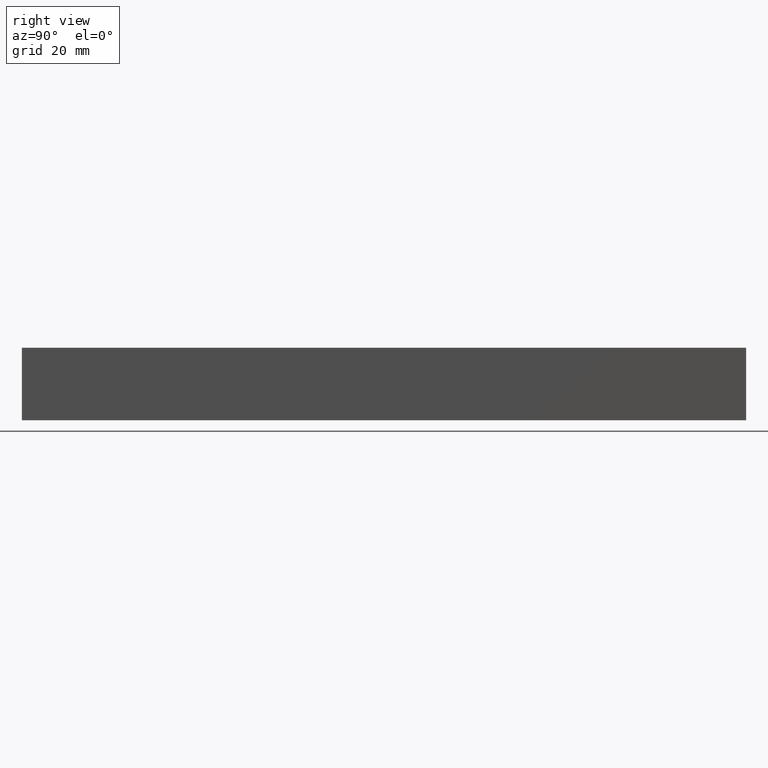
[diagram: clean part render]
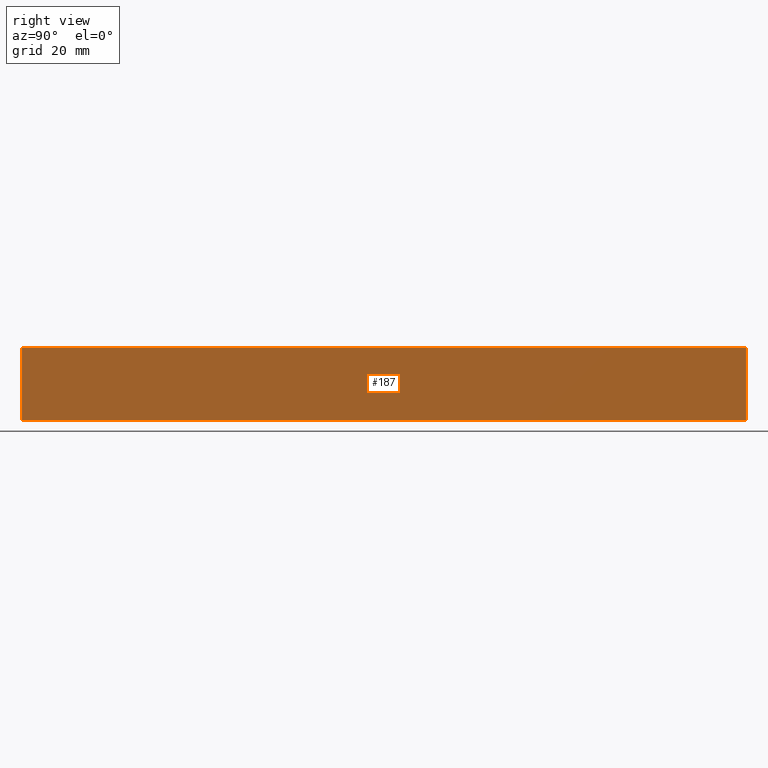
[diagram: same view with one face highlighted and labeled with its STEP entity id]
A machine part, right view. The second image highlights one B-rep face of the part: STEP entity #187.
In plain terms, the highlighted planar face has unit normal (-1, 0, 0).
Its self-contained STEP definition (entity closure, byte-faithful):
#11 = VECTOR ( 'NONE', #25, 1000.000000000000000 ) ;
#16 = CARTESIAN_POINT ( 'NONE',  ( 20.00000000000000000, 1000.000000000000000, 0.0000000000000000000 ) ) ;
#17 = ORIENTED_EDGE ( 'NONE', *, *, #71, .T. ) ;
#21 = CARTESIAN_POINT ( 'NONE',  ( 20.00000000000000000, 200.0000000000000000, 0.0000000000000000000 ) ) ;
#25 = DIRECTION ( 'NONE',  ( 0.0000000000000000000, -1.000000000000000000, 0.0000000000000000000 ) ) ;
#29 = EDGE_CURVE ( 'NONE', #158, #116, #146, .T. ) ;
#30 = VERTEX_POINT ( 'NONE', #144 ) ;
#31 = ORIENTED_EDGE ( 'NONE', *, *, #52, .T. ) ;
#32 = FACE_OUTER_BOUND ( 'NONE', #126, .T. ) ;
#34 = CARTESIAN_POINT ( 'NONE',  ( 20.00000000000000000, 1000.000000000000000, 20.00000000000000000 ) ) ;
#37 = ORIENTED_EDGE ( 'NONE', *, *, #29, .F. ) ;
#42 = PLANE ( 'NONE',  #219 ) ;
#43 = LINE ( 'NONE', #16, #168 ) ;
#52 = EDGE_CURVE ( 'NONE', #158, #214, #101, .T. ) ;
#63 = DIRECTION ( 'NONE',  ( 0.0000000000000000000, -1.000000000000000000, 0.0000000000000000000 ) ) ;
#68 = ORIENTED_EDGE ( 'NONE', *, *, #81, .F. ) ;
#71 = EDGE_CURVE ( 'NONE', #214, #30, #107, .T. ) ;
#81 = EDGE_CURVE ( 'NONE', #116, #30, #43, .T. ) ;
#86 = CARTESIAN_POINT ( 'NONE',  ( 20.00000000000000000, 0.0000000000000000000, 20.00000000000000000 ) ) ;
#101 = LINE ( 'NONE', #178, #11 ) ;
#107 = LINE ( 'NONE', #170, #133 ) ;
#108 = DIRECTION ( 'NONE',  ( -1.000000000000000000, 0.0000000000000000000, 0.0000000000000000000 ) ) ;
#116 = VERTEX_POINT ( 'NONE', #21 ) ;
#124 = VECTOR ( 'NONE', #207, 1000.000000000000000 ) ;
#126 = EDGE_LOOP ( 'NONE', ( #17, #68, #37, #31 ) ) ;
#133 = VECTOR ( 'NONE', #161, 1000.000000000000000 ) ;
#144 = CARTESIAN_POINT ( 'NONE',  ( 20.00000000000000000, 0.0000000000000000000, 0.0000000000000000000 ) ) ;
#146 = LINE ( 'NONE', #231, #124 ) ;
#158 = VERTEX_POINT ( 'NONE', #235 ) ;
#161 = DIRECTION ( 'NONE',  ( 0.0000000000000000000, 0.0000000000000000000, -1.000000000000000000 ) ) ;
#162 = DIRECTION ( 'NONE',  ( 0.0000000000000000000, 0.0000000000000000000, 1.000000000000000000 ) ) ;
#168 = VECTOR ( 'NONE', #63, 1000.000000000000000 ) ;
#170 = CARTESIAN_POINT ( 'NONE',  ( 20.00000000000000000, 0.0000000000000000000, 20.00000000000000000 ) ) ;
#178 = CARTESIAN_POINT ( 'NONE',  ( 20.00000000000000000, 1000.000000000000000, 20.00000000000000000 ) ) ;
#187 = ADVANCED_FACE ( 'NONE', ( #32 ), #42, .F. ) ;
#207 = DIRECTION ( 'NONE',  ( 0.0000000000000000000, 0.0000000000000000000, -1.000000000000000000 ) ) ;
#214 = VERTEX_POINT ( 'NONE', #86 ) ;
#219 = AXIS2_PLACEMENT_3D ( 'NONE', #34, #108, #162 ) ;
#231 = CARTESIAN_POINT ( 'NONE',  ( 20.00000000000000000, 200.0000000000000000, 20.00000000000000000 ) ) ;
#235 = CARTESIAN_POINT ( 'NONE',  ( 20.00000000000000000, 200.0000000000000000, 20.00000000000000000 ) ) ;